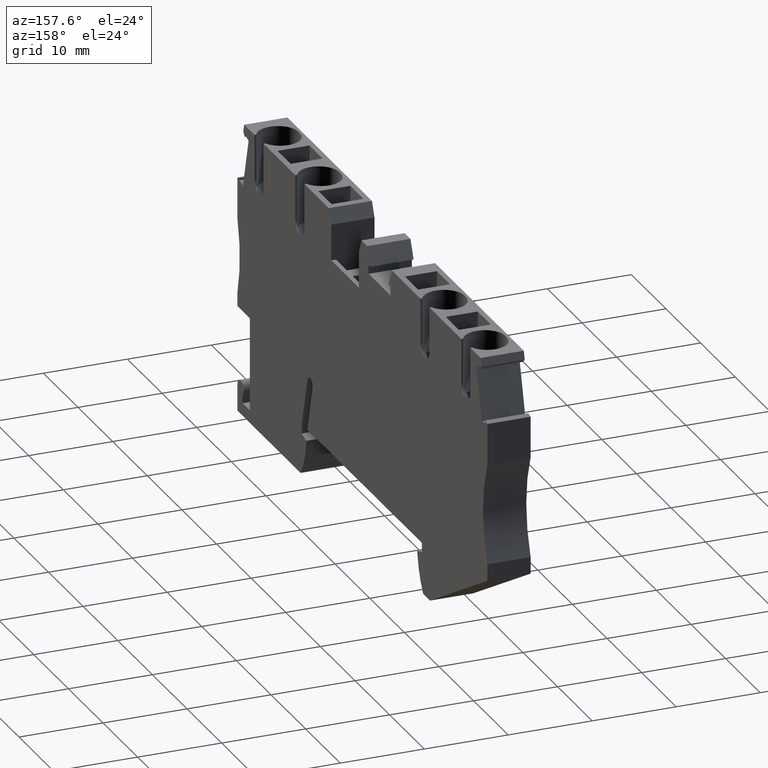
[diagram: clean part render]
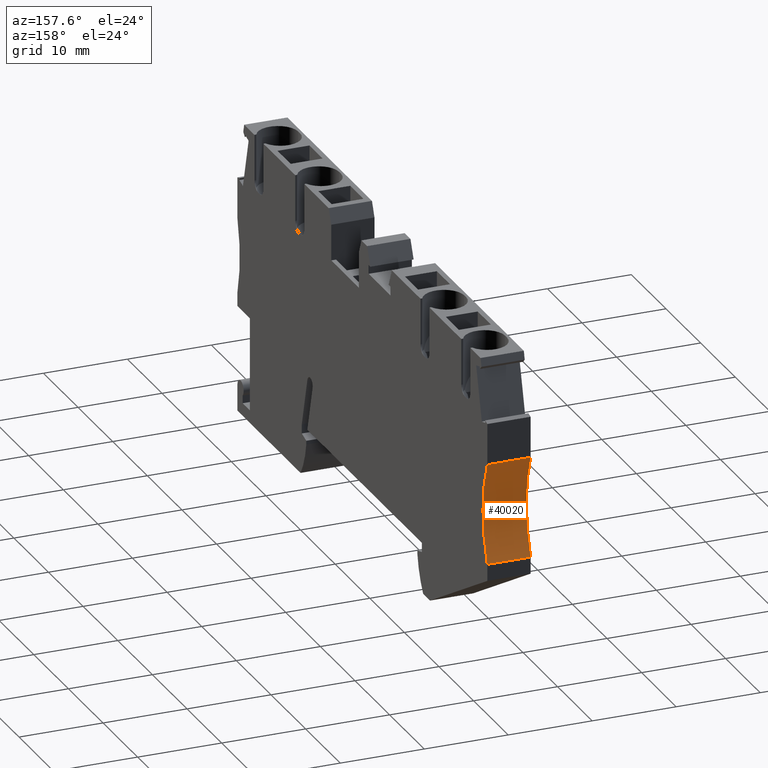
[diagram: same view with one face highlighted and labeled with its STEP entity id]
A machine part, auxiliary view. The second image highlights one B-rep face of the part: STEP entity #40020.
In plain terms, the highlighted cylindrical surface (partial cylindrical patch) has radius 15 mm, axis along (1, -0, -0).
Its self-contained STEP definition (entity closure, byte-faithful):
#38900=CARTESIAN_POINT('',(71.146692629697,13.8056662950281,
-2.48689957516035E-14));
#38910=DIRECTION('',(0.,0.,1.));
#38920=VECTOR('',#38910,1.);
#38930=LINE('',#38900,#38920);
#38940=CARTESIAN_POINT('',(71.146692629697,13.8056662950281,
-5.15000000000003));
#38950=VERTEX_POINT('',#38940);
#38960=CARTESIAN_POINT('',(71.146692629697,13.8056662950281,
-2.8199664825479E-14));
#38970=VERTEX_POINT('',#38960);
#38980=EDGE_CURVE('',#38950,#38970,#38930,.T.);
#39700=CARTESIAN_POINT('',(84.0607301811666,21.4363696780219,
-2.48689957516035E-14));
#39710=DIRECTION('',(0.,0.,1.));
#39720=DIRECTION('',(0.992546151641322,0.121869343405147,0.));
#39730=AXIS2_PLACEMENT_3D('',#39700,#39710,#39720);
#39740=CYLINDRICAL_SURFACE('',#39730,15.);
#39750=CARTESIAN_POINT('',(69.6842605088354,25.7162201147241,
-2.48689957516035E-14));
#39760=DIRECTION('',(0.,0.,1.));
#39770=VECTOR('',#39760,1.);
#39780=LINE('',#39750,#39770);
#39790=CARTESIAN_POINT('',(69.6842605088354,25.7162201147242,
-5.15000000000003));
#39800=VERTEX_POINT('',#39790);
#39810=CARTESIAN_POINT('',(69.6842605088354,25.7162201147242,
-2.8199664825479E-14));
#39820=VERTEX_POINT('',#39810);
#39830=EDGE_CURVE('',#39800,#39820,#39780,.T.);
#39840=ORIENTED_EDGE('',*,*,#39830,.T.);
#39850=CARTESIAN_POINT('',(84.0607301811666,21.4363696780219,
-5.15000000000003));
#39860=DIRECTION('',(0.,0.,1.));
#39870=DIRECTION('',(0.992546151641322,0.121869343405147,0.));
#39880=AXIS2_PLACEMENT_3D('',#39850,#39860,#39870);
#39890=CIRCLE('',#39880,15.);
#39900=EDGE_CURVE('',#39800,#38950,#39890,.T.);
#39910=ORIENTED_EDGE('',*,*,#39900,.F.);
#39920=ORIENTED_EDGE('',*,*,#38980,.F.);
#39930=CARTESIAN_POINT('',(84.0607301811666,21.4363696780219,
-2.8199664825479E-14));
#39940=DIRECTION('',(0.,0.,1.));
#39950=DIRECTION('',(0.992546151641322,0.121869343405147,0.));
#39960=AXIS2_PLACEMENT_3D('',#39930,#39940,#39950);
#39970=CIRCLE('',#39960,15.);
#39980=EDGE_CURVE('',#39820,#38970,#39970,.T.);
#39990=ORIENTED_EDGE('',*,*,#39980,.T.);
#40000=EDGE_LOOP('',(#39990,#39920,#39910,#39840));
#40010=FACE_OUTER_BOUND('',#40000,.T.);
#40020=ADVANCED_FACE('',(#40010),#39740,.F.);